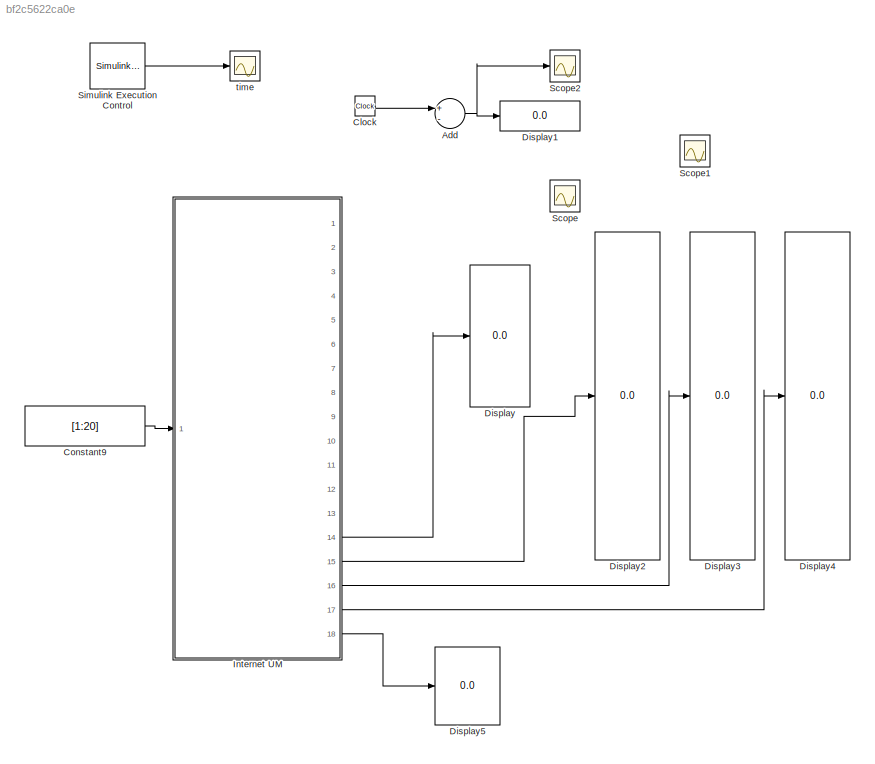
MODEL slx_bf2c5622ca0e
KIND model
BLOCK [Sum] Add
  InputSameDT = off
  Inputs = +-
  OutDataTypeStr = Inherit: Inherit via internal rule
  Ports = [2, 1]
  SaturateOnIntegerOverflow = off
BLOCK [Clock] Clock
BLOCK [Constant] Constant9
  Value = [1:20]
BLOCK [Display] Display
  Decimation = 1
  Ports = [1]
BLOCK [Display] Display1
  Decimation = 1
  Ports = [1]
BLOCK [Display] Display2
  Decimation = 1
  Ports = [1]
BLOCK [Display] Display3
  Decimation = 1
  Ports = [1]
BLOCK [Display] Display4
  Decimation = 1
  Ports = [1]
BLOCK [Display] Display5
  Decimation = 1
  Ports = [1]
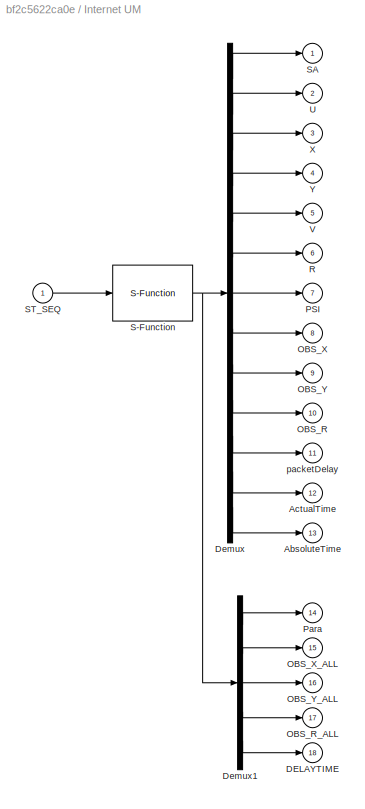
BLOCK [SubSystem] Internet UM
  Ports = [1, 18]
  RequestExecContextInheritance = off
BLOCK [Outport] Internet UM/AbsoluteTime
  IconDisplay = Port number
  Port = 13
BLOCK [Outport] Internet UM/ActualTime
  IconDisplay = Port number
  Port = 12
BLOCK [Outport] Internet UM/DELAYTIME
  IconDisplay = Port number
  Port = 18
BLOCK [Demux] Internet UM/Demux
  DisplayOption = bar
  Outputs = [1 1 1 1 1 1 1 3 3 3 1 1 1]
  Ports = [1, 13]
BLOCK [Demux] Internet UM/Demux1
  DisplayOption = bar
  Outputs = [7 3 3 3 3]
  Ports = [1, 5]
BLOCK [Outport] Internet UM/OBS_R
  IconDisplay = Port number
  Port = 10
BLOCK [Outport] Internet UM/OBS_R_ALL
  IconDisplay = Port number
  Port = 17
BLOCK [Outport] Internet UM/OBS_X
  IconDisplay = Port number
  Port = 8
BLOCK [Outport] Internet UM/OBS_X_ALL
  IconDisplay = Port number
  Port = 15
BLOCK [Outport] Internet UM/OBS_Y
  IconDisplay = Port number
  Port = 9
BLOCK [Outport] Internet UM/OBS_Y_ALL
  IconDisplay = Port number
  Port = 16
BLOCK [Outport] Internet UM/PSI
  IconDisplay = Port number
  Port = 7
BLOCK [Outport] Internet UM/Para
  IconDisplay = Port number
  Port = 14
BLOCK [Outport] Internet UM/R
  IconDisplay = Port number
  Port = 6
BLOCK [S-Function] Internet UM/S-Function
  EnableBusSupport = off
  FunctionName = InternetUM
  Ports = [1, 1]
BLOCK [Outport] Internet UM/SA
  IconDisplay = Port number
BLOCK [Inport] Internet UM/ST_SEQ
  IconDisplay = Port number
BLOCK [Outport] Internet UM/U
  IconDisplay = Port number
  Port = 2
BLOCK [Outport] Internet UM/V
  IconDisplay = Port number
  Port = 5
BLOCK [Outport] Internet UM/X
  IconDisplay = Port number
  Port = 3
BLOCK [Outport] Internet UM/Y
  IconDisplay = Port number
  Port = 4
BLOCK [Outport] Internet UM/packetDelay
  IconDisplay = Port number
  Port = 11
BLOCK [Scope] Scope
  Floating = off
  LimitDataPoints = off
  NumInputPorts = 1
  Ports = [1]
  ShowLegends = off
BLOCK [Scope] Scope1
  Floating = off
  LimitDataPoints = off
  NumInputPorts = 1
  Ports = [1]
  SaveName = ScopeData1
  ShowLegends = off
BLOCK [Scope] Scope2
  Floating = off
  LimitDataPoints = off
  NumInputPorts = 1
  Ports = [1]
  SaveName = ScopeData2
  ShowLegends = off
  YMax = 0.05
  YMin = -0.12
BLOCK [Reference] Simulink Execution Control  REF=SimulinkExecutionControl/Simulink
Execution
Control
  Ports = [0, 1]
  SourceBlock = SimulinkExecutionControl/Simulink\nExecution\nControl
  SourceType = Simulink Execution Control V2.0
  Ts = -1
  factor = 1
  ovrrun = Continue execution
  proc_pri = REALTIME_PRIORITY_CLASS
  rt_sim = on
  thread_pri = THREAD_PRIORITY_TIME_CRITICAL
BLOCK [Scope] time
  Floating = off
  NumInputPorts = 1
  Ports = [1]
  SampleTime = 0
  SaveName = ScopeData4
  ShowLegends = off
  TickLabels = on
  YMax = 1.4075
  YMin = 1.375
  ZoomMode = xonly
NET Add:1 -> Display1:1, Scope2:1
LINE Clock:1 -> Add:1
LINE Constant9:1 -> Internet UM:1
LINE Internet UM/Demux1:1 -> Internet UM/Para:1
LINE Internet UM/Demux1:2 -> Internet UM/OBS_X_ALL:1
LINE Internet UM/Demux1:3 -> Internet UM/OBS_Y_ALL:1
LINE Internet UM/Demux1:4 -> Internet UM/OBS_R_ALL:1
LINE Internet UM/Demux1:5 -> Internet UM/DELAYTIME:1
LINE Internet UM/Demux:1 -> Internet UM/SA:1
LINE Internet UM/Demux:10 -> Internet UM/OBS_R:1
LINE Internet UM/Demux:11 -> Internet UM/packetDelay:1
LINE Internet UM/Demux:12 -> Internet UM/ActualTime:1
LINE Internet UM/Demux:13 -> Internet UM/AbsoluteTime:1
LINE Internet UM/Demux:2 -> Internet UM/U:1
LINE Internet UM/Demux:3 -> Internet UM/X:1
LINE Internet UM/Demux:4 -> Internet UM/Y:1
LINE Internet UM/Demux:5 -> Internet UM/V:1
LINE Internet UM/Demux:6 -> Internet UM/R:1
LINE Internet UM/Demux:7 -> Internet UM/PSI:1
LINE Internet UM/Demux:8 -> Internet UM/OBS_X:1
LINE Internet UM/Demux:9 -> Internet UM/OBS_Y:1
NET Internet UM/S-Function:1 -> Internet UM/Demux1:1, Internet UM/Demux:1
LINE Internet UM/ST_SEQ:1 -> Internet UM/S-Function:1
LINE Internet UM:14 -> Display:1
LINE Internet UM:15 -> Display2:1
LINE Internet UM:16 -> Display3:1
LINE Internet UM:17 -> Display4:1
LINE Internet UM:18 -> Display5:1
LINE Simulink Execution Control:1 -> time:1
note: NET lines group one-source signal fan-out (src -> all destinations, sorted); 1:1 wires keep LINE
